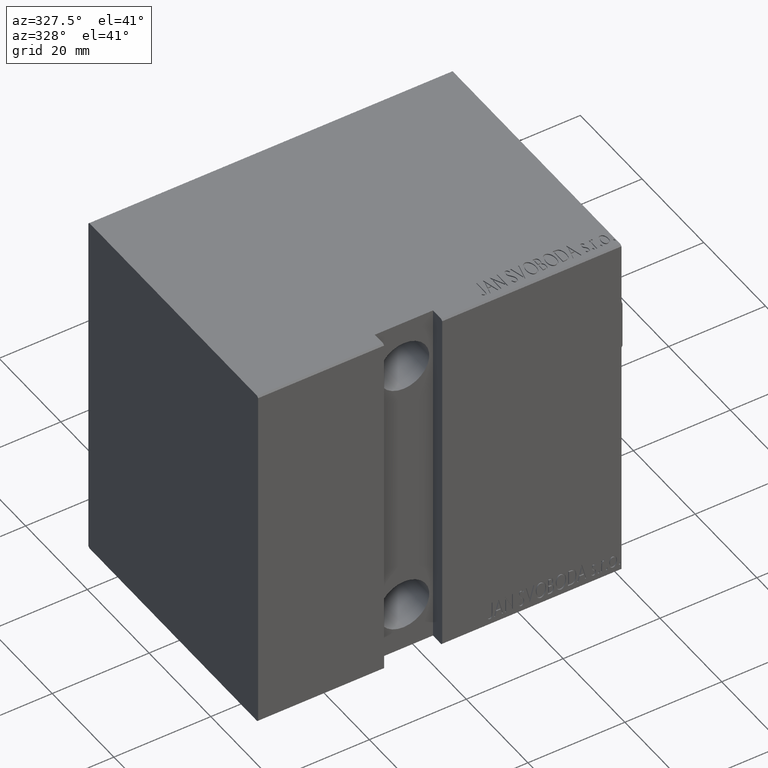
[diagram: clean part render]
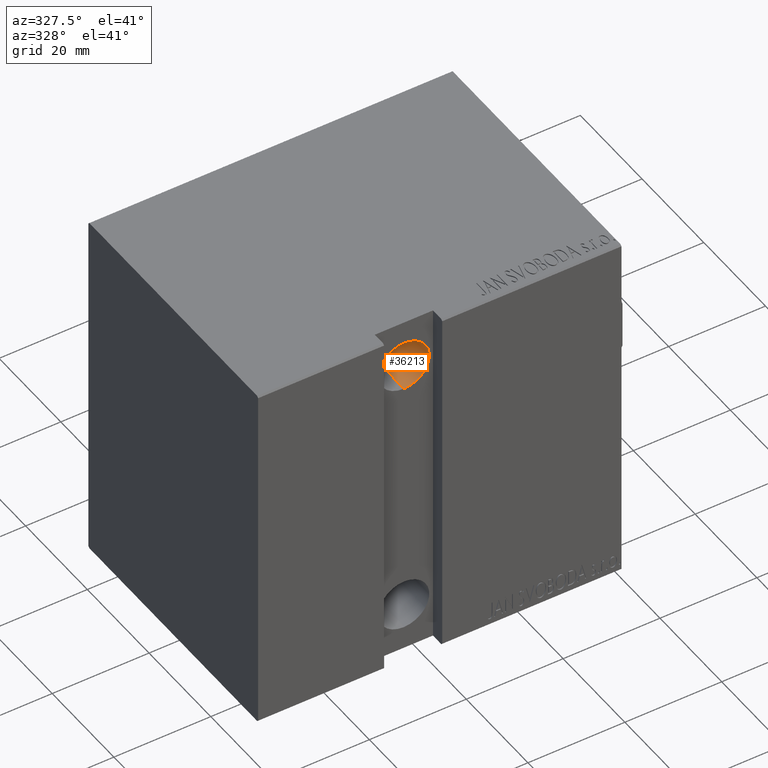
[diagram: same view with one face highlighted and labeled with its STEP entity id]
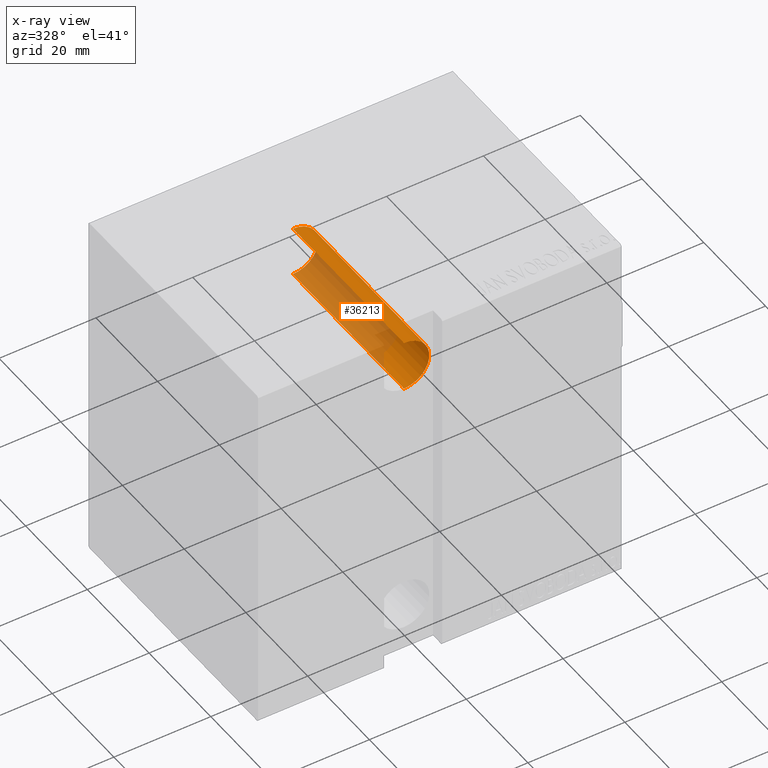
[diagram: x-ray of the same camera — body ghosted, the highlighted face saturated]
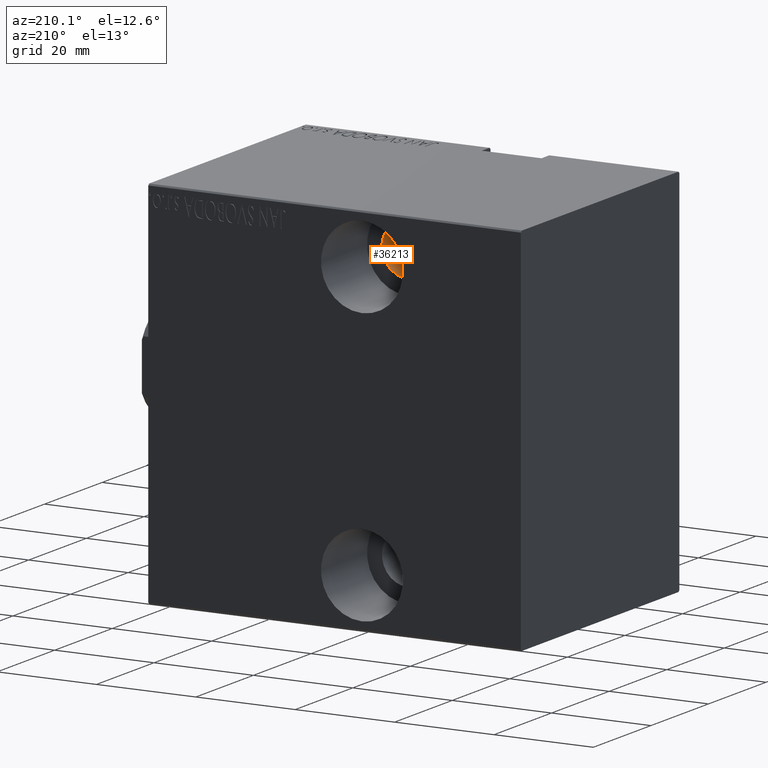
[diagram: same view with one face highlighted and labeled with its STEP entity id]
A machine part, auxiliary view. The second image highlights one B-rep face of the part: STEP entity #36213.
The next image is the same camera in x-ray: the body ghosted, the highlighted face saturated — about 49% of this face is hidden behind the body in this view.
A second angle (auxiliary view) of the same face is appended — the face is thin or edge-on in the first view.
In plain terms, the highlighted cylindrical surface (edge-blend (fillet) strip) has radius 5.25 mm, axis along (0, -1, 0).
Its self-contained STEP definition (entity closure, byte-faithful):
#847 = CIRCLE ( 'NONE', #25666, 5.249999999999997335 ) ;
#5445 = DIRECTION ( 'NONE',  ( -0.000000000000000000, 1.000000000000000000, -0.000000000000000000 ) ) ;
#5744 = ORIENTED_EDGE ( 'NONE', *, *, #41169, .F. ) ;
#7445 = CARTESIAN_POINT ( 'NONE',  ( 43.00000000000001421, -11.49999999999999289, 27.50000000000000000 ) ) ;
#7820 = CARTESIAN_POINT ( 'NONE',  ( 43.00000000000001421, 24.50000000000000000, 32.74999999999999289 ) ) ;
#8950 = CARTESIAN_POINT ( 'NONE',  ( 43.00000000000001421, 24.50000000000000000, 22.25000000000000355 ) ) ;
#11034 = EDGE_CURVE ( 'NONE', #35183, #14046, #31473, .T. ) ;
#11836 = CARTESIAN_POINT ( 'NONE',  ( 43.00000000000001421, -27.50000000000002487, 27.50000000000000000 ) ) ;
#12117 = VERTEX_POINT ( 'NONE', #42726 ) ;
#14046 = VERTEX_POINT ( 'NONE', #8950 ) ;
#15168 = CARTESIAN_POINT ( 'NONE',  ( 43.00000000000001421, -27.50000000000002487, 32.74999999999999289 ) ) ;
#16844 = AXIS2_PLACEMENT_3D ( 'NONE', #11836, #30731, #17552 ) ;
#17552 = DIRECTION ( 'NONE',  ( 0.000000000000000000, 0.000000000000000000, 1.000000000000000000 ) ) ;
#18846 = LINE ( 'NONE', #15168, #34179 ) ;
#20159 = EDGE_LOOP ( 'NONE', ( #5744, #22118, #40736, #20174 ) ) ;
#20174 = ORIENTED_EDGE ( 'NONE', *, *, #40113, .F. ) ;
#20618 = DIRECTION ( 'NONE',  ( 0.000000000000000000, -3.304235192336776991E-16, -1.000000000000000000 ) ) ;
#21098 = AXIS2_PLACEMENT_3D ( 'NONE', #7445, #24261, #20618 ) ;
#22118 = ORIENTED_EDGE ( 'NONE', *, *, #11034, .T. ) ;
#23143 = CIRCLE ( 'NONE', #21098, 5.249999999999997335 ) ;
#24261 = DIRECTION ( 'NONE',  ( -0.000000000000000000, 1.000000000000000000, -1.963837897332234442E-16 ) ) ;
#25011 = CYLINDRICAL_SURFACE ( 'NONE', #16844, 5.249999999999994671 ) ;
#25666 = AXIS2_PLACEMENT_3D ( 'NONE', #30846, #33668, #33881 ) ;
#25942 = EDGE_CURVE ( 'NONE', #40284, #14046, #847, .T. ) ;
#28339 = CARTESIAN_POINT ( 'NONE',  ( 43.00000000000001421, -11.49999999999999467, 22.25000000000000355 ) ) ;
#30731 = DIRECTION ( 'NONE',  ( -0.000000000000000000, 1.000000000000000000, -0.000000000000000000 ) ) ;
#30846 = CARTESIAN_POINT ( 'NONE',  ( 43.00000000000001421, 24.50000000000000000, 27.50000000000000000 ) ) ;
#31473 = LINE ( 'NONE', #41200, #35690 ) ;
#32900 = FACE_OUTER_BOUND ( 'NONE', #20159, .T. ) ;
#33668 = DIRECTION ( 'NONE',  ( 0.000000000000000000, -1.000000000000000000, 0.000000000000000000 ) ) ;
#33881 = DIRECTION ( 'NONE',  ( 0.000000000000000000, 0.000000000000000000, -1.000000000000000000 ) ) ;
#34179 = VECTOR ( 'NONE', #5445, 1000.000000000000000 ) ;
#35183 = VERTEX_POINT ( 'NONE', #28339 ) ;
#35690 = VECTOR ( 'NONE', #40997, 1000.000000000000000 ) ;
#36213 = ADVANCED_FACE ( 'NONE', ( #32900 ), #25011, .F. ) ;
#40113 = EDGE_CURVE ( 'NONE', #12117, #40284, #18846, .T. ) ;
#40284 = VERTEX_POINT ( 'NONE', #7820 ) ;
#40736 = ORIENTED_EDGE ( 'NONE', *, *, #25942, .F. ) ;
#40997 = DIRECTION ( 'NONE',  ( -0.000000000000000000, 1.000000000000000000, -0.000000000000000000 ) ) ;
#41169 = EDGE_CURVE ( 'NONE', #35183, #12117, #23143, .T. ) ;
#41200 = CARTESIAN_POINT ( 'NONE',  ( 43.00000000000001421, -27.50000000000002487, 22.25000000000000355 ) ) ;
#42726 = CARTESIAN_POINT ( 'NONE',  ( 43.00000000000001421, -11.49999999999999112, 32.74999999999999289 ) ) ;